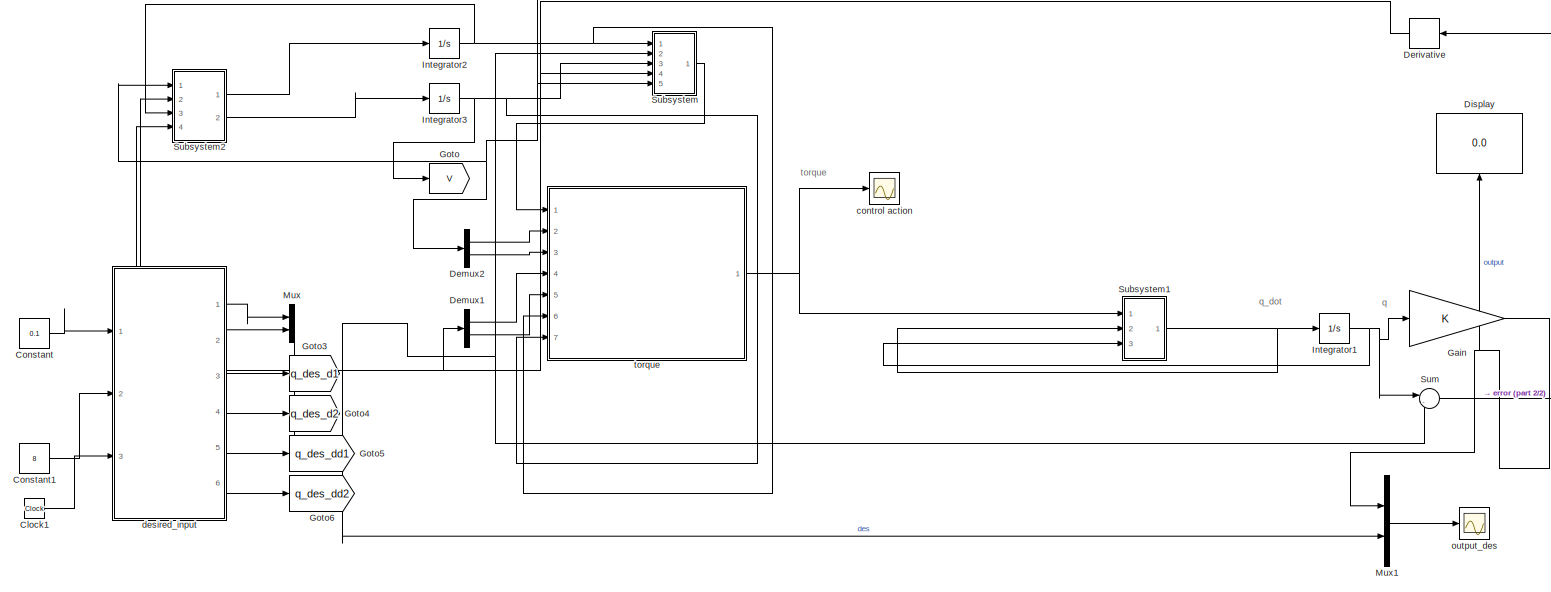
[diagram: root canvas - part 1/2, most of the canvas]
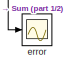
[diagram: root canvas - part 2/2, bottom right region]
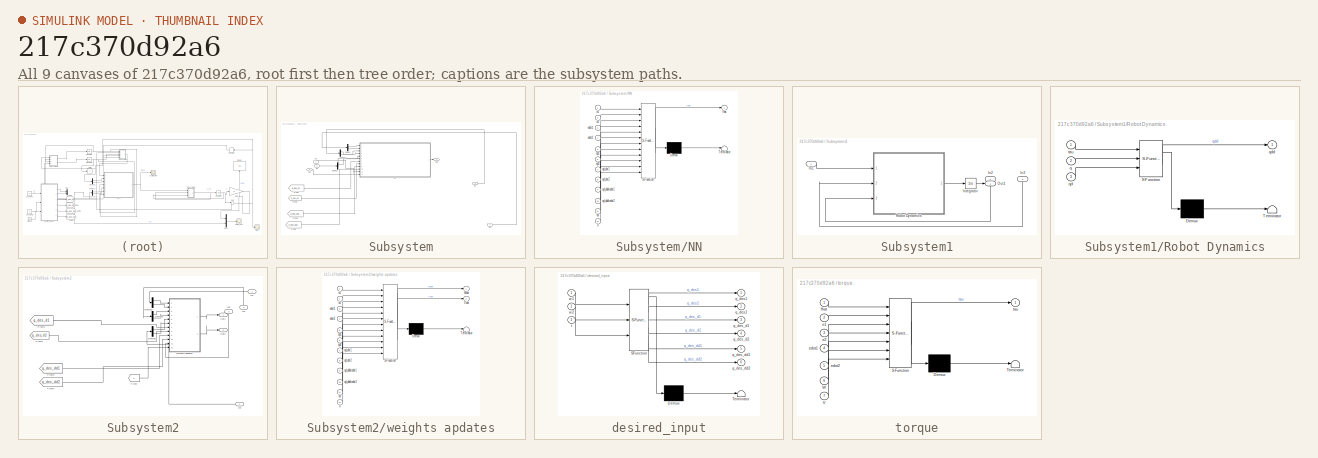
[diagram: thumbnail index - all 9 canvases of the model, root first then tree order]
MODEL slx_217c370d92a6
KIND model
CONFIG AbsTol = auto
CONFIG EnableMultiTasking = off
CONFIG FixedStep = 0.001
CONFIG MaxStep = .1
CONFIG MinStep = auto
CONFIG RelTol = 1e-3
CONFIG SampleTimeConstraint = Unconstrained
CONFIG SolverName = ode8
CONFIG StartTime = 0.0
CONFIG StopTime = 5
BLOCK [Clock] Clock1
BLOCK [Constant] Constant
  Value = 0.1
BLOCK [Constant] Constant1
  Value = 8
BLOCK [Demux] Demux1
  Outputs = 2
  Ports = [1, 2]
BLOCK [Demux] Demux2
  Outputs = 2
  Ports = [1, 2]
BLOCK [Derivative] Derivative
  NameLocation = top
BLOCK [Display] Display
  Decimation = 1
  NameLocation = right
  Ports = [1]
BLOCK [Gain] Gain
BLOCK [Goto] Goto
  GotoTag = V
  TagVisibility = global
BLOCK [Goto] Goto3
  GotoTag = q_des_d1
  TagVisibility = global
BLOCK [Goto] Goto4
  GotoTag = q_des_d2
  TagVisibility = global
BLOCK [Goto] Goto5
  GotoTag = q_des_dd1
  TagVisibility = global
BLOCK [Goto] Goto6
  GotoTag = q_des_dd2
  TagVisibility = global
BLOCK [Integrator] Integrator1
  InitialCondition = [45;95]*pi/180*0
  Ports = [1, 1]
BLOCK [Integrator] Integrator2
  InitialCondition = zeros(2,10)
  Ports = [1, 1]
BLOCK [Integrator] Integrator3
  InitialCondition = zeros(10,11)
  Ports = [1, 1]
BLOCK [Mux] Mux
  DisplayOption = bar
  Inputs = 2
  Ports = [2, 1]
BLOCK [Mux] Mux1
  DisplayOption = bar
  Inputs = 2
  Ports = [2, 1]
BLOCK [SubSystem] Subsystem
  Ports = [5, 1]
  RequestExecContextInheritance = off
BLOCK [Demux] Subsystem/Demux
  Outputs = 2
  Ports = [1, 2]
BLOCK [Demux] Subsystem/Demux1
  Outputs = 2
  Ports = [1, 2]
BLOCK [Demux] Subsystem/Demux2
  Outputs = 2
  Ports = [1, 2]
BLOCK [From] Subsystem/From1
  GotoTag = q_des_d1
  TagVisibility = global
BLOCK [From] Subsystem/From2
  GotoTag = q_des_d2
  TagVisibility = global
BLOCK [From] Subsystem/From3
  GotoTag = q_des_dd1
  TagVisibility = global
BLOCK [From] Subsystem/From4
  GotoTag = q_des_dd2
  TagVisibility = global
BLOCK [Inport] Subsystem/In1
  NameLocation = right
BLOCK [Inport] Subsystem/In2
  Port = 2
BLOCK [Inport] Subsystem/In3
  Port = 3
BLOCK [Inport] Subsystem/In4
  Port = 4
BLOCK [Inport] Subsystem/In5
  Port = 5
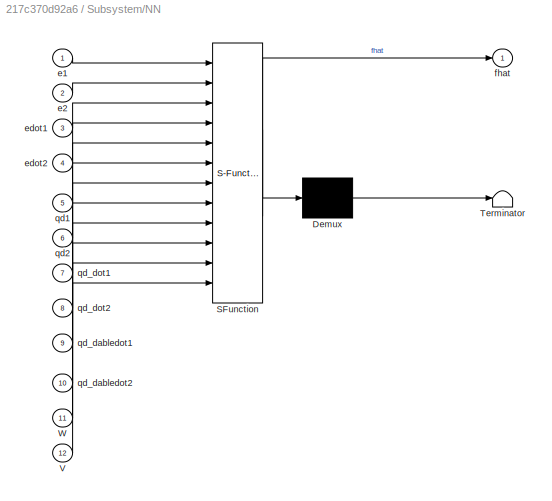
BLOCK [SubSystem] Subsystem/NN
  ErrorFcn = Stateflow.Translate.translate
  PermitHierarchicalResolution = ExplicitOnly
  Ports = [12, 1]
  RequestExecContextInheritance = off
  SFBlockType = MATLAB Function
  TreatAsAtomicUnit = on
BLOCK [Demux] Subsystem/NN/ Demux 
  Outputs = 1
  Ports = [1, 1]
BLOCK [S-Function] Subsystem/NN/ SFunction 
  EnableBusSupport = on
  FunctionName = sf_sfun
  PortCounts = [12 2]
  Ports = [12, 2]
  SFcnIsStateOwnerBlock = off
  SFunctionDeploymentMode = off
  Tag = Stateflow S-Function 3
BLOCK [Terminator] Subsystem/NN/ Terminator 
BLOCK [Inport] Subsystem/NN/V
  Port = 12
BLOCK [Inport] Subsystem/NN/W
  Port = 11
BLOCK [Inport] Subsystem/NN/e1
BLOCK [Inport] Subsystem/NN/e2
  Port = 2
BLOCK [Inport] Subsystem/NN/edot1
  Port = 3
BLOCK [Inport] Subsystem/NN/edot2
  Port = 4
BLOCK [Outport] Subsystem/NN/fhat
BLOCK [Inport] Subsystem/NN/qd1
  Port = 5
BLOCK [Inport] Subsystem/NN/qd2
  Port = 6
BLOCK [Inport] Subsystem/NN/qd_dabledot1
  Port = 9
BLOCK [Inport] Subsystem/NN/qd_dabledot2
  Port = 10
BLOCK [Inport] Subsystem/NN/qd_dot1
  Port = 7
BLOCK [Inport] Subsystem/NN/qd_dot2
  Port = 8
BLOCK [Outport] Subsystem/Out1
BLOCK [SubSystem] Subsystem1
  Ports = [3, 1]
  RequestExecContextInheritance = off
BLOCK [Inport] Subsystem1/In1
BLOCK [Inport] Subsystem1/In2
  NameLocation = right
  Port = 2
BLOCK [Inport] Subsystem1/In3
  NameLocation = right
  Port = 3
BLOCK [Integrator] Subsystem1/Integrator
  InitialCondition = zeros(2,1)
  Ports = [1, 1]
BLOCK [Outport] Subsystem1/Out1
BLOCK [SubSystem] Subsystem1/Robot Dynamics
  ErrorFcn = Stateflow.Translate.translate
  PermitHierarchicalResolution = ExplicitOnly
  Ports = [3, 1]
  RequestExecContextInheritance = off
  SFBlockType = MATLAB Function
  TreatAsAtomicUnit = on
BLOCK [Demux] Subsystem1/Robot Dynamics/ Demux 
  Outputs = 1
  Ports = [1, 1]
BLOCK [S-Function] Subsystem1/Robot Dynamics/ SFunction 
  EnableBusSupport = on
  FunctionName = sf_sfun
  PortCounts = [3 2]
  Ports = [3, 2]
  SFcnIsStateOwnerBlock = off
  SFunctionDeploymentMode = off
  Tag = Stateflow S-Function 2
BLOCK [Terminator] Subsystem1/Robot Dynamics/ Terminator 
BLOCK [Inport] Subsystem1/Robot Dynamics/q
  Port = 2
BLOCK [Inport] Subsystem1/Robot Dynamics/qd
  Port = 3
BLOCK [Outport] Subsystem1/Robot Dynamics/qdd
BLOCK [Inport] Subsystem1/Robot Dynamics/tau
BLOCK [SubSystem] Subsystem2
  Ports = [4, 2]
  RequestExecContextInheritance = off
BLOCK [Demux] Subsystem2/Demux1
  Outputs = 2
  Ports = [1, 2]
BLOCK [Demux] Subsystem2/Demux2
  Outputs = 2
  Ports = [1, 2]
BLOCK [Demux] Subsystem2/Demux3
  Outputs = 2
  Ports = [1, 2]
BLOCK [From] Subsystem2/From
  GotoTag = V
  TagVisibility = global
BLOCK [From] Subsystem2/From1
  GotoTag = q_des_d1
  TagVisibility = global
BLOCK [From] Subsystem2/From2
  GotoTag = q_des_d2
  TagVisibility = global
BLOCK [From] Subsystem2/From3
  GotoTag = q_des_dd1
  TagVisibility = global
BLOCK [From] Subsystem2/From4
  GotoTag = q_des_dd2
  TagVisibility = global
BLOCK [Inport] Subsystem2/In1
BLOCK [Inport] Subsystem2/In2
  NameLocation = right
  Port = 2
BLOCK [Inport] Subsystem2/In3
  NameLocation = right
  Port = 3
BLOCK [Inport] Subsystem2/In4
  Port = 4
BLOCK [Outport] Subsystem2/Out1
BLOCK [Outport] Subsystem2/Out2
  Port = 2
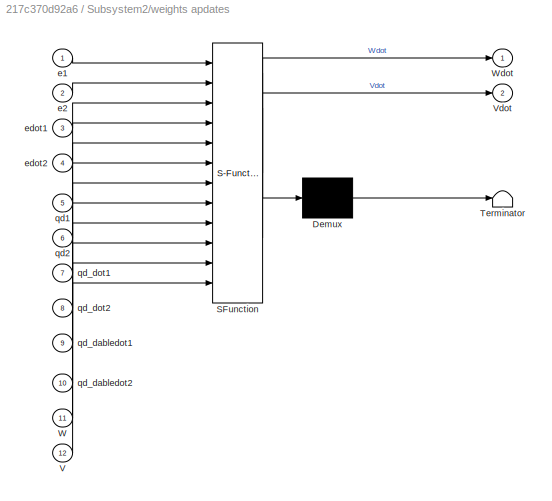
BLOCK [SubSystem] Subsystem2/weights apdates
  ErrorFcn = Stateflow.Translate.translate
  PermitHierarchicalResolution = ExplicitOnly
  Ports = [12, 2]
  RequestExecContextInheritance = off
  SFBlockType = MATLAB Function
  TreatAsAtomicUnit = on
BLOCK [Demux] Subsystem2/weights apdates/ Demux 
  Outputs = 1
  Ports = [1, 1]
BLOCK [S-Function] Subsystem2/weights apdates/ SFunction 
  EnableBusSupport = on
  FunctionName = sf_sfun
  PortCounts = [12 3]
  Ports = [12, 3]
  SFcnIsStateOwnerBlock = off
  SFunctionDeploymentMode = off
  Tag = Stateflow S-Function 4
BLOCK [Terminator] Subsystem2/weights apdates/ Terminator 
BLOCK [Inport] Subsystem2/weights apdates/V
  Port = 12
BLOCK [Outport] Subsystem2/weights apdates/Vdot
  Port = 2
BLOCK [Inport] Subsystem2/weights apdates/W
  Port = 11
BLOCK [Outport] Subsystem2/weights apdates/Wdot
BLOCK [Inport] Subsystem2/weights apdates/e1
BLOCK [Inport] Subsystem2/weights apdates/e2
  Port = 2
BLOCK [Inport] Subsystem2/weights apdates/edot1
  Port = 3
BLOCK [Inport] Subsystem2/weights apdates/edot2
  Port = 4
BLOCK [Inport] Subsystem2/weights apdates/qd1
  Port = 5
BLOCK [Inport] Subsystem2/weights apdates/qd2
  Port = 6
BLOCK [Inport] Subsystem2/weights apdates/qd_dabledot1
  Port = 9
BLOCK [Inport] Subsystem2/weights apdates/qd_dabledot2
  Port = 10
BLOCK [Inport] Subsystem2/weights apdates/qd_dot1
  Port = 7
BLOCK [Inport] Subsystem2/weights apdates/qd_dot2
  Port = 8
BLOCK [Sum] Sum
  Inputs = |-+
  Ports = [2, 1]
BLOCK [Scope] control action
  Floating = off
  NumInputPorts = 1
  Ports = [1]
  ScopeSpecificationString = Simulink.scopes.TimeScopeBlockCfg('CurrentConfiguration', extmgr.ConfigurationSet(extmgr.Configuration('Core','General UI',true,'FigureColor',[1 1 1]),extmgr.Configuration('Core','Source UI',true),extmgr.Configuration('Sources','WiredSimulink',true,'DataLoggingVariableName','ScopeData1','DataLoggingSaveFormat','StructureWithTime','DataLoggingDecimation','1','DataLoggingDecimateData',true),extmgr.C...<+2824ch>
BLOCK [SubSystem] desired_input
  ErrorFcn = Stateflow.Translate.translate
  PermitHierarchicalResolution = ExplicitOnly
  Ports = [3, 6]
  RequestExecContextInheritance = off
  SFBlockType = MATLAB Function
  TreatAsAtomicUnit = on
BLOCK [Demux] desired_input/ Demux 
  Outputs = 1
  Ports = [1, 1]
BLOCK [S-Function] desired_input/ SFunction 
  EnableBusSupport = on
  FunctionName = sf_sfun
  PortCounts = [3 7]
  Ports = [3, 7]
  SFcnIsStateOwnerBlock = off
  SFunctionDeploymentMode = off
  Tag = Stateflow S-Function 5
BLOCK [Terminator] desired_input/ Terminator 
BLOCK [Outport] desired_input/q_des1
BLOCK [Outport] desired_input/q_des2
  Port = 2
BLOCK [Outport] desired_input/q_des_d1
  Port = 3
BLOCK [Outport] desired_input/q_des_d2
  Port = 4
BLOCK [Outport] desired_input/q_des_dd1
  Port = 5
BLOCK [Outport] desired_input/q_des_dd2
  Port = 6
BLOCK [Inport] desired_input/t
  Port = 3
BLOCK [Inport] desired_input/w1
BLOCK [Inport] desired_input/w2
  Port = 2
BLOCK [Scope] error
  Floating = off
  NumInputPorts = 1
  Ports = [1]
  ScopeSpecificationString = C++SS(StrPVP('Location','[10, 60, 1372, 739]'),StrPVP('Open','off'),MxPVP('AxesTitles',54,'struct(''axes1'',''%<SignalLabel>'')'),MxPVP('ScopeGraphics',57,'struct(''FigureColor'',''[0.156862745098039 0.156862745098039 0.156862745098039]'',''AxesColor'',''[0 0 0]'',''AxesTickColor'',''[0.686274509803922 0.686274509803922 0.686274509803922]'',''LineColors'',''[1 1 0;1 0 1;0 1 1;1 0 0;0 1 0;0 0 1]'',...<+349ch>
BLOCK [Scope] output_des
  Floating = off
  NumInputPorts = 1
  Ports = [1]
  ScopeSpecificationString = Simulink.scopes.TimeScopeBlockCfg('CurrentConfiguration', extmgr.ConfigurationSet(extmgr.Configuration('Core','General UI',true,'FigureColor',[1 1 1]),extmgr.Configuration('Core','Source UI',true),extmgr.Configuration('Sources','WiredSimulink',true,'DataLoggingVariableName','ScopeData2','DataLoggingSaveFormat','StructureWithTime','DataLoggingDecimation','1','DataLoggingDecimateData',true),extmgr.C...<+2900ch>
BLOCK [SubSystem] torque
  ErrorFcn = Stateflow.Translate.translate
  PermitHierarchicalResolution = ExplicitOnly
  Ports = [7, 1]
  RequestExecContextInheritance = off
  SFBlockType = MATLAB Function
  TreatAsAtomicUnit = on
BLOCK [Demux] torque/ Demux 
  Outputs = 1
  Ports = [1, 1]
BLOCK [S-Function] torque/ SFunction 
  EnableBusSupport = on
  FunctionName = sf_sfun
  PortCounts = [7 2]
  Ports = [7, 2]
  SFcnIsStateOwnerBlock = off
  SFunctionDeploymentMode = off
  Tag = Stateflow S-Function 1
BLOCK [Terminator] torque/ Terminator 
BLOCK [Inport] torque/V
  Port = 7
BLOCK [Inport] torque/W
  Port = 6
BLOCK [Inport] torque/e1
  Port = 2
BLOCK [Inport] torque/e2
  Port = 3
BLOCK [Inport] torque/edot1
  Port = 4
BLOCK [Inport] torque/edot2
  Port = 5
BLOCK [Inport] torque/fhat
BLOCK [Outport] torque/tau
ANNOTATION (root): q
ANNOTATION (root): q_dot
ANNOTATION (root): torque
LINE Clock1:1 -> desired_input:3
LINE Constant1:1 -> desired_input:2
LINE Constant:1 -> desired_input:1
LINE Demux1:1 -> torque:4
LINE Demux1:2 -> torque:5
LINE Demux2:1 -> torque:2
LINE Demux2:2 -> torque:3
NET Derivative:1 -> Demux1:1, Subsystem2:2, Subsystem:4
NET Gain:1 -> Display:1, Mux1:1
NET Integrator1:1 -> Gain:1, Subsystem1:3, Sum:1
NET Integrator2:1 -> Subsystem2:3, Subsystem:1, torque:6
NET Integrator3:1 -> Goto:1, Subsystem:3, torque:7
LINE Mux1:1 -> output_des:1
NET Mux:1 -> Mux1:2, Subsystem2:4, Subsystem:2, Sum:2
LINE Subsystem/Demux1:1 -> Subsystem/NN:5
LINE Subsystem/Demux1:2 -> Subsystem/NN:6
LINE Subsystem/Demux2:1 -> Subsystem/NN:3
LINE Subsystem/Demux2:2 -> Subsystem/NN:4
LINE Subsystem/Demux:1 -> Subsystem/NN:1
LINE Subsystem/Demux:2 -> Subsystem/NN:2
LINE Subsystem/From1:1 -> Subsystem/NN:7
LINE Subsystem/From2:1 -> Subsystem/NN:8
LINE Subsystem/From3:1 -> Subsystem/NN:9
LINE Subsystem/From4:1 -> Subsystem/NN:10
LINE Subsystem/In1:1 -> Subsystem/NN:11
LINE Subsystem/In2:1 -> Subsystem/Demux1:1
LINE Subsystem/In3:1 -> Subsystem/NN:12
LINE Subsystem/In4:1 -> Subsystem/Demux2:1
LINE Subsystem/In5:1 -> Subsystem/Demux:1
LINE Subsystem/NN:1 -> Subsystem/Out1:1
LINE Subsystem1/In1:1 -> Subsystem1/Robot Dynamics:1
LINE Subsystem1/In2:1 -> Subsystem1/Robot Dynamics:3
LINE Subsystem1/In3:1 -> Subsystem1/Robot Dynamics:2
LINE Subsystem1/Integrator:1 -> Subsystem1/Out1:1
LINE Subsystem1/Robot Dynamics:1 -> Subsystem1/Integrator:1
NET Subsystem1:1 -> Integrator1:1, Subsystem1:2
LINE Subsystem2/Demux1:1 -> Subsystem2/weights apdates:3
LINE Subsystem2/Demux1:2 -> Subsystem2/weights apdates:4
LINE Subsystem2/Demux2:1 -> Subsystem2/weights apdates:1
LINE Subsystem2/Demux2:2 -> Subsystem2/weights apdates:2
LINE Subsystem2/Demux3:1 -> Subsystem2/weights apdates:5
LINE Subsystem2/Demux3:2 -> Subsystem2/weights apdates:6
LINE Subsystem2/From1:1 -> Subsystem2/weights apdates:7
LINE Subsystem2/From2:1 -> Subsystem2/weights apdates:8
LINE Subsystem2/From3:1 -> Subsystem2/weights apdates:9
LINE Subsystem2/From4:1 -> Subsystem2/weights apdates:10
LINE Subsystem2/From:1 -> Subsystem2/weights apdates:12
LINE Subsystem2/In1:1 -> Subsystem2/Demux2:1
LINE Subsystem2/In2:1 -> Subsystem2/Demux1:1
LINE Subsystem2/In3:1 -> Subsystem2/weights apdates:11
LINE Subsystem2/In4:1 -> Subsystem2/Demux3:1
LINE Subsystem2/weights apdates:1 -> Subsystem2/Out1:1
LINE Subsystem2/weights apdates:2 -> Subsystem2/Out2:1
LINE Subsystem2:1 -> Integrator2:1
LINE Subsystem2:2 -> Integrator3:1
LINE Subsystem:1 -> torque:1
NET Sum:1 -> Demux2:1, Derivative:1, Subsystem2:1, Subsystem:5, error:1
LINE desired_input:1 -> Mux:1
LINE desired_input:2 -> Mux:2
LINE desired_input:3 -> Goto3:1
LINE desired_input:4 -> Goto4:1
LINE desired_input:5 -> Goto5:1
LINE desired_input:6 -> Goto6:1
NET torque:1 -> Subsystem1:1, control action:1
note: NET lines group one-source signal fan-out (src -> all destinations, sorted); 1:1 wires keep LINE
CHART torque states=1 transitions=1
  STATE_LABEL 'eML_blk_kernel()'
  STATE_LABEL "SCRIPT:\nfunction tau = fcn(fhat,e1,e2,edot1,edot2,W,V)\ne = [e1 e2];\nedot = [edot1 edot2];\n%filtered error:\nr = edot' + 10*eye(2)*e';\n\nZ = [V W']; \n%design constants:\nKv = 20;\nKz = 1;\n% ZM = norm(Z,'fro');\nZM = sqrt((2*80*(1.62e-05)^2)+(80*11*(1.458e-05)^2));\nv = -Kz*((norm(Z,'fro'))+ZM)*r;\ntau = fhat + Kv*r - v;\n\n\n"
CHART Subsystem1/Robot Dynamics states=1 transitions=1
  STATE_LABEL 'eML_blk_kernel()'
  STATE_LABEL 'SCRIPT:\nfunction qdd = fcn(tau,q,qd)\n\nq1=q(1);\nq2=q(2);\n\nq1d=qd(1);\nq2d=qd(2);\n\n\n\nm1=.1;\nm2=.1;\n\nI1=.01;\nI2=.01;\n\nl1=.12;\nl2=.1;\n\nlc1=l1/2;\nlc2=l2/2;\n\n\ng=9.8;\n\n\n\nd11=m1*lc1^2+m2*(l1^2+lc2^2+2*l1*lc2^2+2*l1*l2*cos(q2))+I1+I2;\nd12=m2*(lc2^2+l1*l2*cos(q2))+I2;\nd22=m2*lc2^2+I2;\n\nh=-m2*l1*lc2*sin(q2);\n\nc121=h;\nc211=h;\nc112=-h;\nc221=h;\n\n\n\nM=[d11,d12;d12,d22];\nC=[c121*q2d,c211*q1d+c221*q2d;c112*q1d,0];\nG...<+98ch>'
CHART Subsystem/NN states=1 transitions=1
  STATE_LABEL 'eML_blk_kernel()'
  STATE_LABEL 'SCRIPT:\nfunction fhat = NNcontroller(e1,e2,edot1,edot2,qd1,qd2,qd_dot1,qd_dot2,qd_dabledot1,qd_dabledot2,W,V)\n% inputs: 5*3\ne = [e1 e2];\nedot = [edot1 edot2];\nqd = [qd1 qd2];\nqd_dot = [qd_dot1 qd_dot2];\nqd_dabledot = [qd_dabledot1 qd_dabledot2];\nX = transpose([e edot qd qd_dot qd_dabledot 1]);\n% X: 11*1 &  W:2*10 &  V:10*11  \n%input:11  & hidden:10  &  output:2\n\n\n%%forward\nA = zeros(10,1);\nA = V*X...<+71ch>'
CHART Subsystem2/weights apdates states=1 transitions=1
  STATE_LABEL 'eML_blk_kernel()'
  STATE_LABEL "SCRIPT:\nfunction [Wdot,Vdot] = fcn(e1,e2,edot1,edot2,qd1,qd2,qd_dot1,qd_dot2,qd_dabledot1,qd_dabledot2,W,V)\n% e = [e1;e2];\n% edot = [edot1;edot2];\n% qd = [qd1;qd2];\n% qd_dot = [qd_dot1;qd_dot2];\n% qd_dabledot = [qd_dabledot1;qd_dabledot2];\n% X = [e' ; edot' ; qd' ; qd_dot' ; qd_dabledot'];\ne = [e1 e2];\nedot = [edot1 edot2];\nqd = [qd1 qd2];\nqd_dot = [qd_dot1 qd_dot2];\nqd_dabledot = [qd_dabledot1 qd...<+641ch>"
CHART desired_input states=1 transitions=1
  STATE_LABEL 'eML_blk_kernel()'
  STATE_LABEL 'SCRIPT:\nfunction [q_des1,q_des2,q_des_d1,q_des_d2,q_des_dd1,q_des_dd2] = fcn(w1,w2,t)\nq_des1 = sin(w1*t);\nq_des2 = sin(w2*t);\n\nq_des_d1 = w1*(cos(w1*t));\nq_des_d2 = w2*(cos(w2*t));\n\nq_des_dd1 = -w1^2*(sin(w1*t));\nq_des_dd2 = -w2^2*(sin(w2*t));\n\n'
CHART  states=0 transitions=0
CHART  states=0 transitions=0
CHART  states=0 transitions=0
CHART  states=0 transitions=0
CHART  states=0 transitions=0
